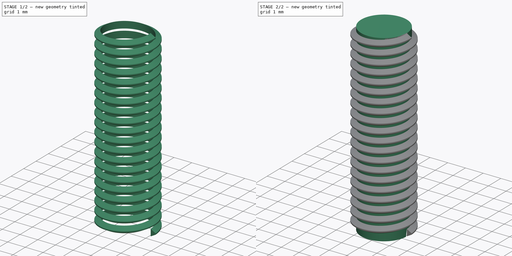
[diagram: build sequence overview — one tinted view per stage of 2, left to right]
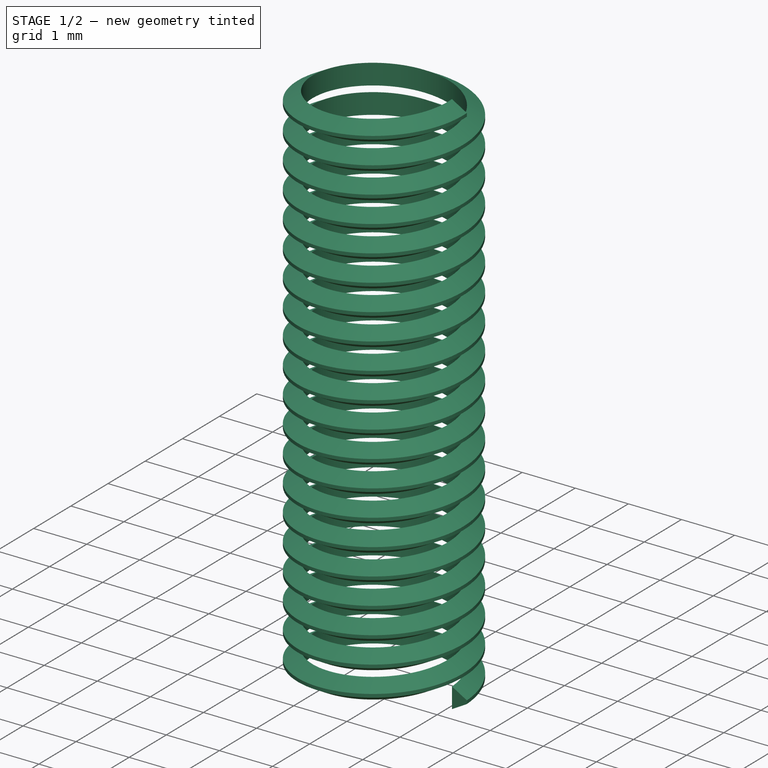
[diagram: stage 1 of 2 — iso view after this stage's code; geometry added in this stage tinted green]
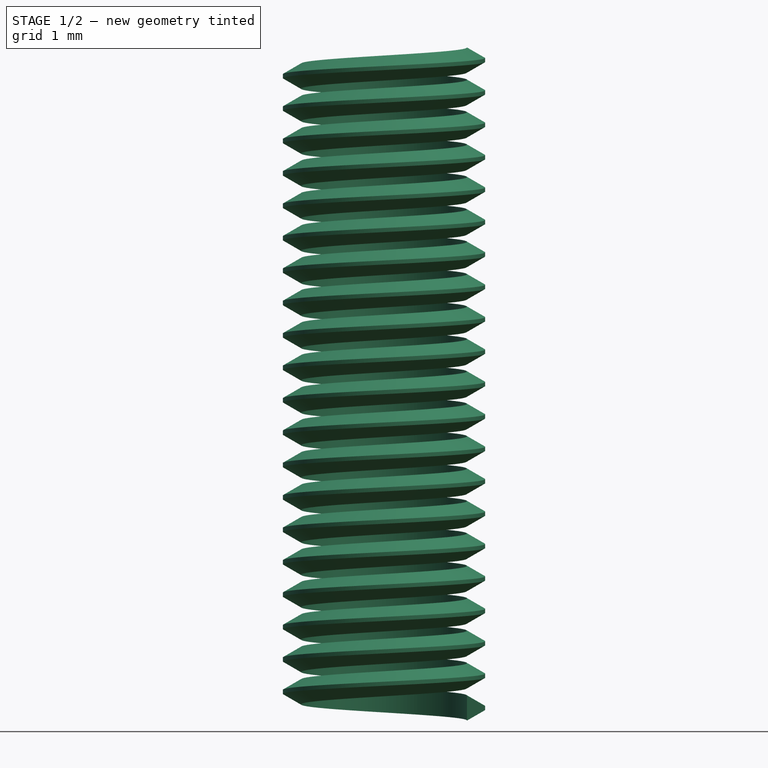
[diagram: stage 1 of 2 — front view after this stage's code; geometry added in this stage tinted green]
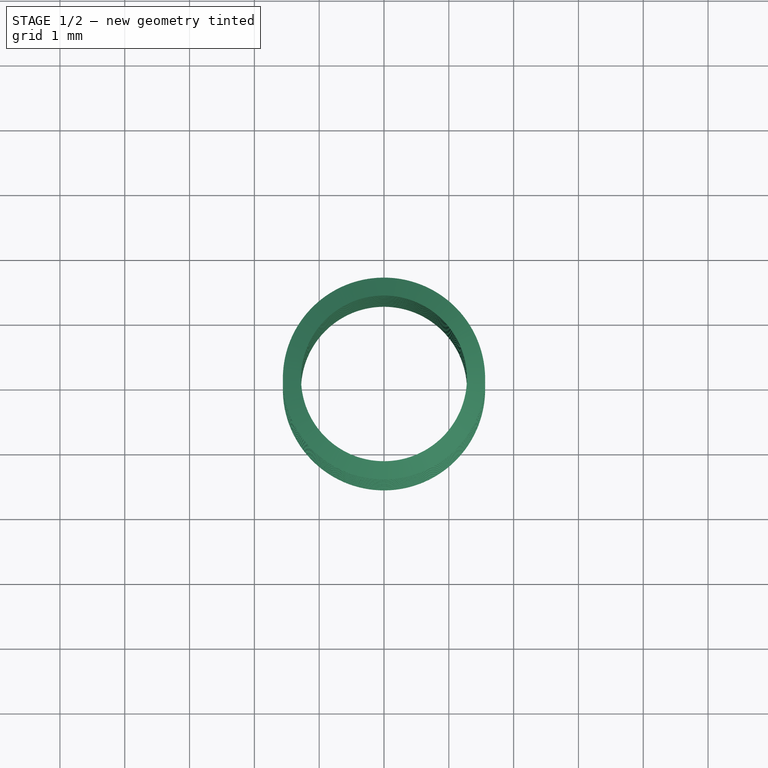
[diagram: stage 1 of 2 — top view after this stage's code; geometry added in this stage tinted green]
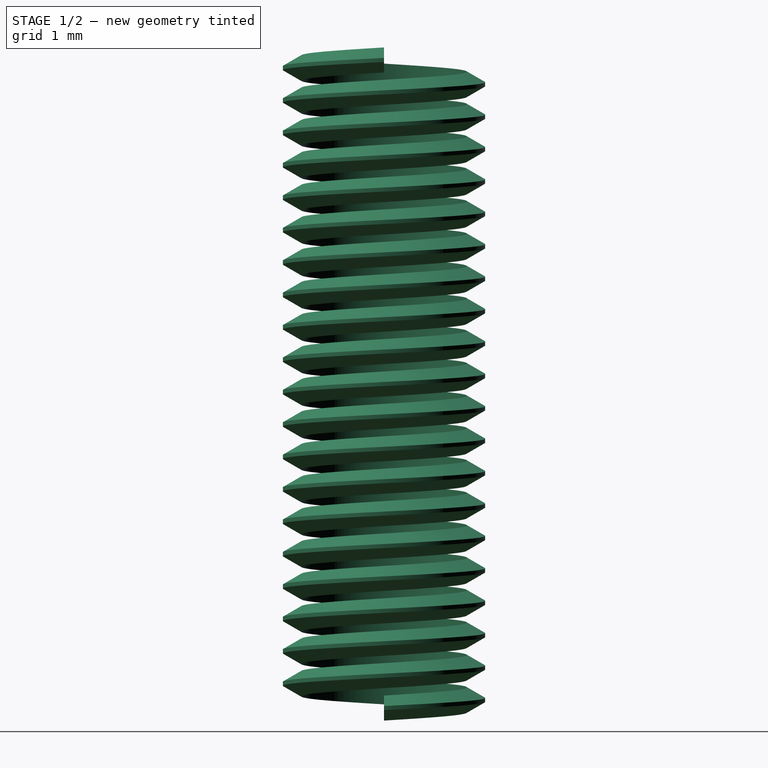
[diagram: stage 1 of 2 — right view after this stage's code; geometry added in this stage tinted green]
FCSTD DOCUMENT  (FreeCAD 0.19R23578 (Git))
Label: M3_0_5_4
License: All rights reserved
LicenseURL: http://en.wikipedia.org/wiki/All_rights_reserved
objects: Part::Helix×1, Sketcher::SketchObject×1, PartDesign::AdditivePipe×1, PartDesign::AdditiveCylinder×1, PartDesign::Body×1
note: 7 computed .brp shape members not serialized (recipe doc carries the construction recipe); baked Part::Feature solids carry a one-line shape summary decoded from their .brp

FEATURE [Part::Helix] Helix
  Angle = 0
  AttacherType = Attacher::AttachEngine3D
  Height = 10
  LocalCoord = 0
  Pitch = 0.5
  Radius = 1.23
  Style = 1
FEATURE [Sketcher::SketchObject] Sketch
  MapMode = 5
  Placement = pos=(0,0,0) rot=(1,0,0;1.5708rad)
  Support = -> [XZ_Plane]
  sketch-geometry (4):
    g0: LineSegment StartX=1.28 StartY=-0.00577 StartZ=0 EndX=1.28 EndY=0.38077 EndZ=0
    g1: LineSegment StartX=1.56063 StartY=0.218748 StartZ=0 EndX=1.56063 EndY=0.156252 EndZ=0
    g2: LineSegment StartX=1.28 StartY=-0.00577 StartZ=0 EndX=1.56063 EndY=0.156252 EndZ=0
    g3: LineSegment StartX=1.28 StartY=0.38077 StartZ=0 EndX=1.56063 EndY=0.218748 EndZ=0
  constraints (12):
    c: Vertical(g0)
    c: DistanceX(g-1,g0) = 1.28
    c: DistanceY(g0,g-1) = 0.00577
    c: Distance(g0) = 0.38654
    c: Vertical(g1)
    c: DistanceX(g0,g1) = 0.28063
    c: Coincident(g2,g0)
    c: Coincident(g2,g1)
    c: Angle(g2,g0) = 1.0472
    c: Coincident(g3,g0)
    c: Coincident(g3,g1)
    c: Equal(g3,g2)
FEATURE [PartDesign::AdditivePipe] AdditivePipe
  AuxilleryCurvelinear = true
  AuxillerySpineTangent = false
  Binormal = (0,0,0)
  Mode = 2
  Placement = pos=(0,0,0) rot=(1,0,0;1.5708rad)
  Profile = -> Sketch
  Spine = -> Helix
  SpineTangent = false
  Transformation = 0
  Transition = 0
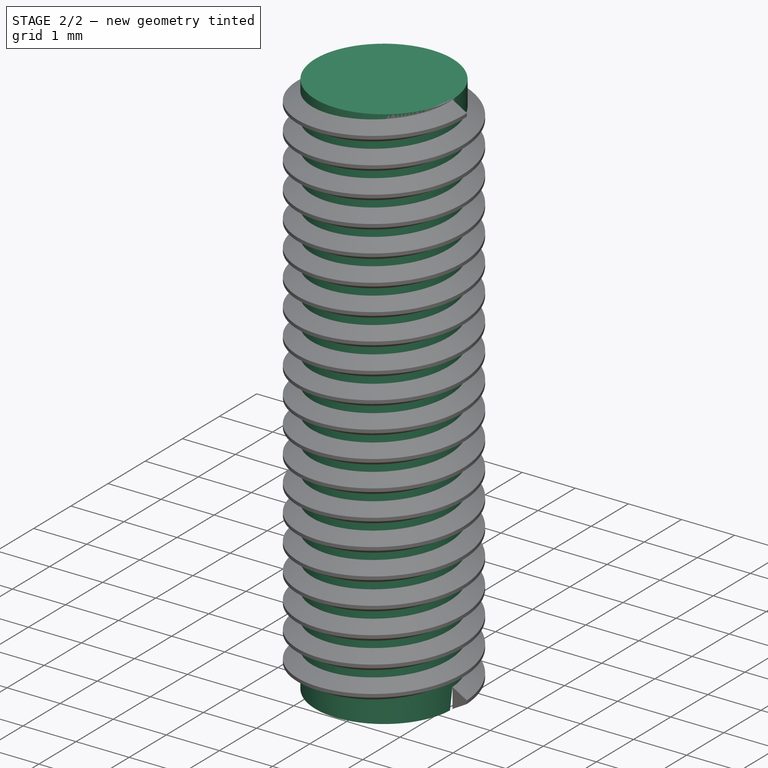
[diagram: stage 2 of 2 — iso view after this stage's code; geometry added in this stage tinted green]
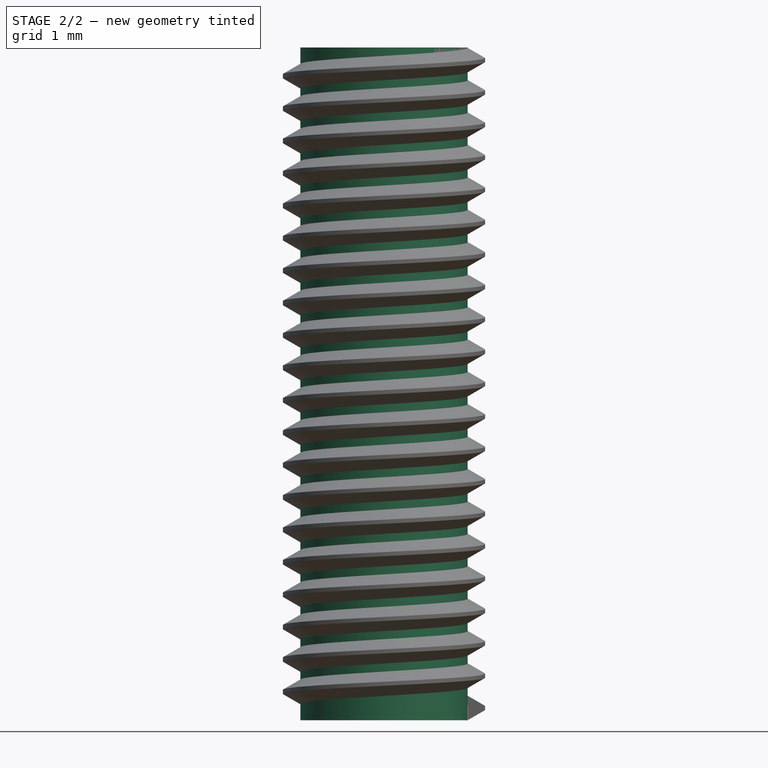
[diagram: stage 2 of 2 — front view after this stage's code; geometry added in this stage tinted green]
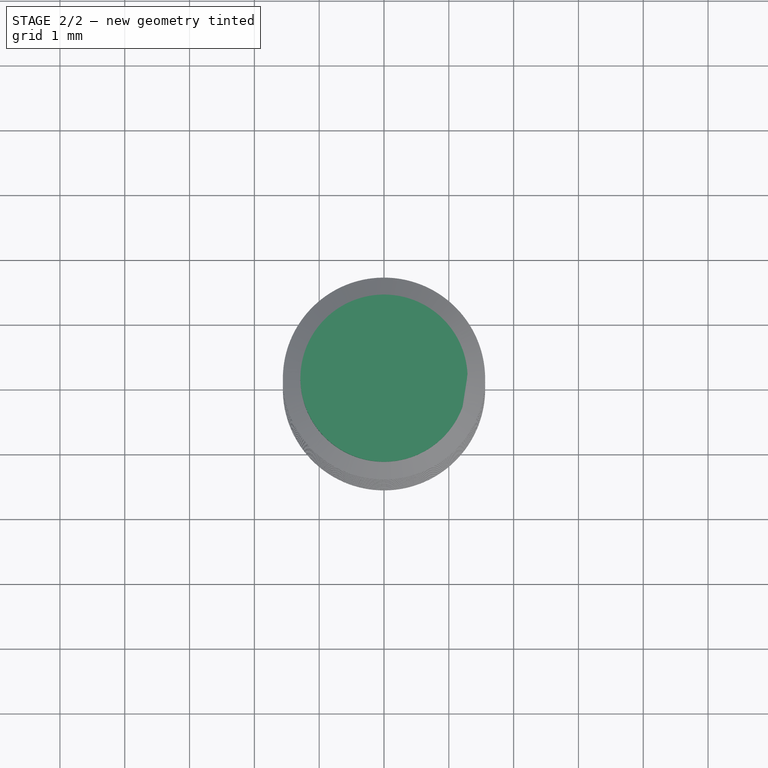
[diagram: stage 2 of 2 — top view after this stage's code; geometry added in this stage tinted green]
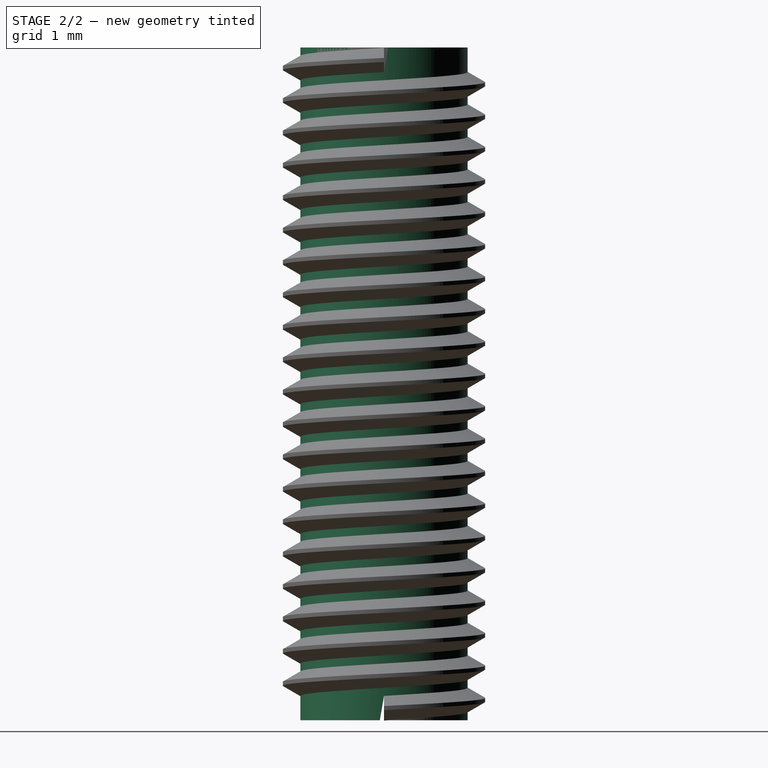
[diagram: stage 2 of 2 — right view after this stage's code; geometry added in this stage tinted green]
FEATURE [PartDesign::AdditiveCylinder] Cylinder
  Angle = 360
  AttacherType = Attacher::AttachEngine3D
  BaseFeature = -> AdditivePipe
  Height = 10.38
  Radius = 1.29
FEATURE [PartDesign::Body] Body
  Group = -> [Sketch,AdditivePipe,Cylinder]
  Origin = -> Origin
  Tip = -> Cylinder
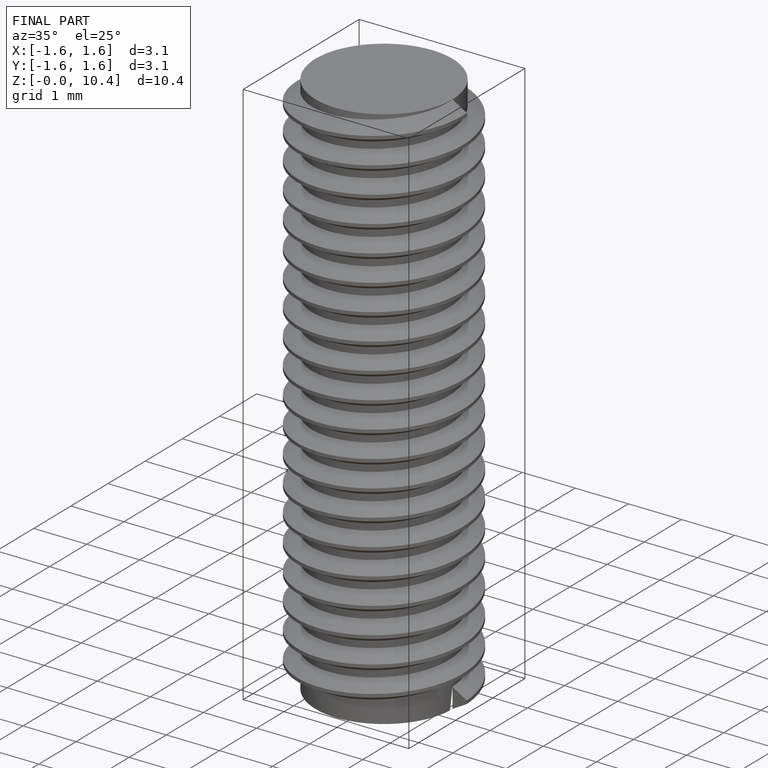
[diagram: finished part — iso view with bounding-box wireframe]
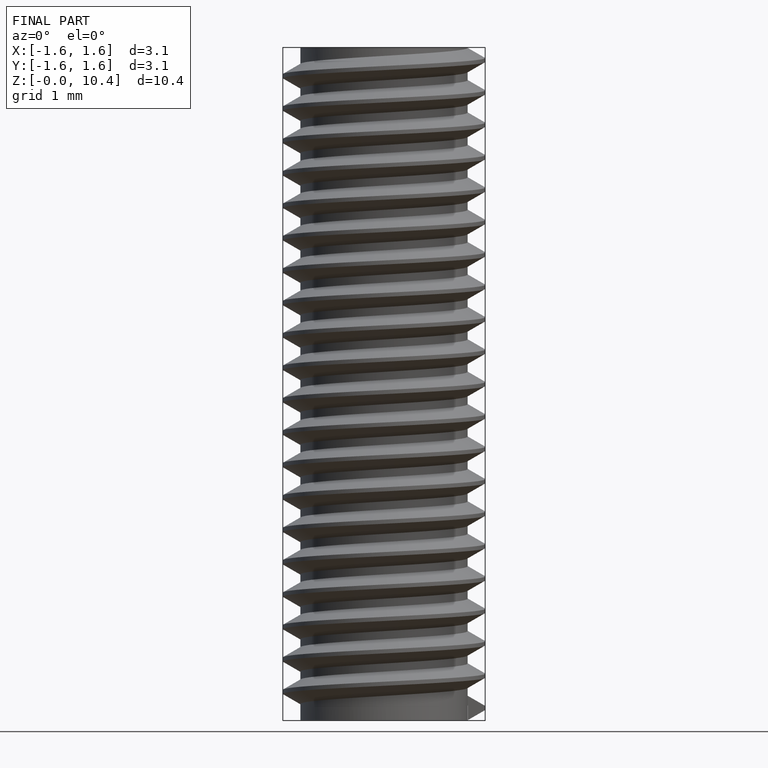
[diagram: finished part — front view with bounding-box wireframe]
